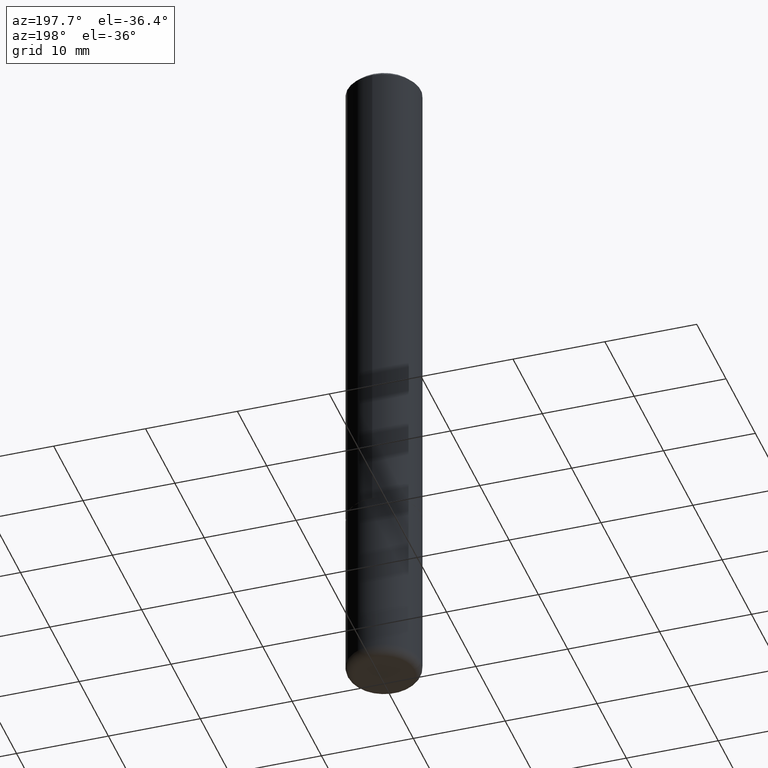
[diagram: clean part render]
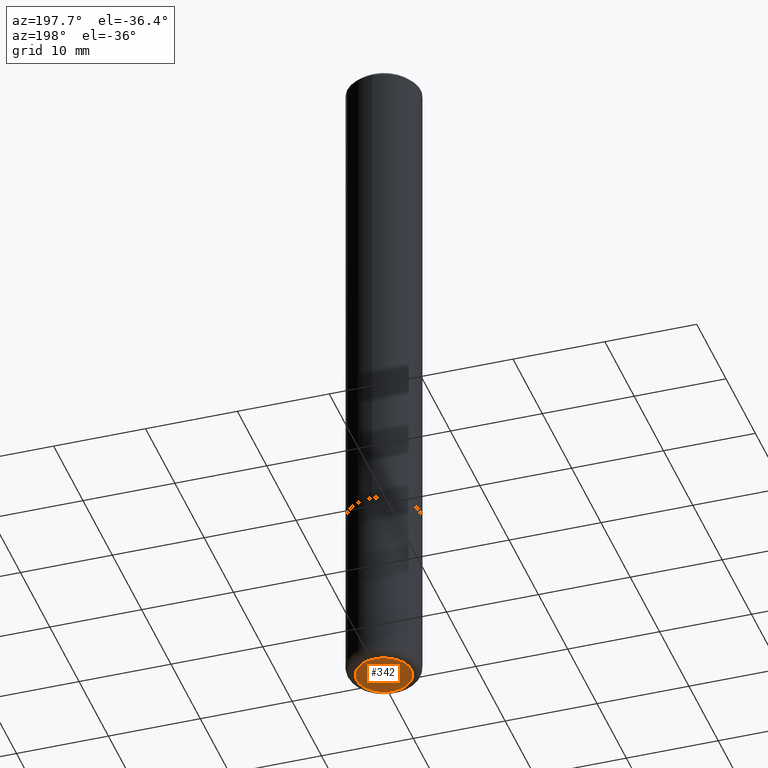
[diagram: same view with one face highlighted and labeled with its STEP entity id]
A machine part, auxiliary view. The second image highlights one B-rep face of the part: STEP entity #342.
In plain terms, the highlighted planar face has unit normal (0, -0, -1).
Its self-contained STEP definition (entity closure, byte-faithful):
#17 = ORIENTED_EDGE ( 'NONE', *, *, #243, .F. ) ;
#18 = FACE_OUTER_BOUND ( 'NONE', #150, .T. ) ;
#23 = AXIS2_PLACEMENT_3D ( 'NONE', #312, #380, #103 ) ;
#39 = PLANE ( 'NONE',  #83 ) ;
#68 = VERTEX_POINT ( 'NONE', #225 ) ;
#83 = AXIS2_PLACEMENT_3D ( 'NONE', #396, #288, #144 ) ;
#103 = DIRECTION ( 'NONE',  ( 1.000000000000000000, -6.982962677686273021E-15, 0.000000000000000000 ) ) ;
#115 = VERTEX_POINT ( 'NONE', #289 ) ;
#144 = DIRECTION ( 'NONE',  ( -1.000000000000000000, 6.982962677686265922E-15, -4.876176775795935793E-29 ) ) ;
#150 = EDGE_LOOP ( 'NONE', ( #17, #398 ) ) ;
#157 = EDGE_CURVE ( 'NONE', #115, #68, #361, .T. ) ;
#185 = CIRCLE ( 'NONE', #23, 0.1180999999999999966 ) ;
#225 = CARTESIAN_POINT ( 'NONE',  ( 0.1180999999999999966, -1.113433398957078679E-14, -2.952799999999999869 ) ) ;
#232 = AXIS2_PLACEMENT_3D ( 'NONE', #325, #418, #265 ) ;
#243 = EDGE_CURVE ( 'NONE', #68, #115, #185, .T. ) ;
#265 = DIRECTION ( 'NONE',  ( 1.000000000000000000, -6.982962677686273021E-15, 0.000000000000000000 ) ) ;
#288 = DIRECTION ( 'NONE',  ( 2.438088387897960049E-29, -3.491481338843145188E-15, -1.000000000000000000 ) ) ;
#289 = CARTESIAN_POINT ( 'NONE',  ( -0.1180999999999999966, -9.261736025083411415E-15, -2.952799999999999869 ) ) ;
#312 = CARTESIAN_POINT ( 'NONE',  ( 7.220980290903470182E-29, -1.030964609733603853E-14, -2.952799999999999869 ) ) ;
#325 = CARTESIAN_POINT ( 'NONE',  ( 7.220980290903470182E-29, -1.030964609733603853E-14, -2.952799999999999869 ) ) ;
#342 = ADVANCED_FACE ( 'NONE', ( #18 ), #39, .T. ) ;
#361 = CIRCLE ( 'NONE', #232, 0.1180999999999999966 ) ;
#380 = DIRECTION ( 'NONE',  ( -2.445468806185136597E-29, 3.491481338843145583E-15, 1.000000000000000000 ) ) ;
#396 = CARTESIAN_POINT ( 'NONE',  ( 7.220980290903470182E-29, -1.030964609733603853E-14, -2.952799999999999869 ) ) ;
#398 = ORIENTED_EDGE ( 'NONE', *, *, #157, .F. ) ;
#418 = DIRECTION ( 'NONE',  ( -2.445468806185136597E-29, 3.491481338843145583E-15, 1.000000000000000000 ) ) ;